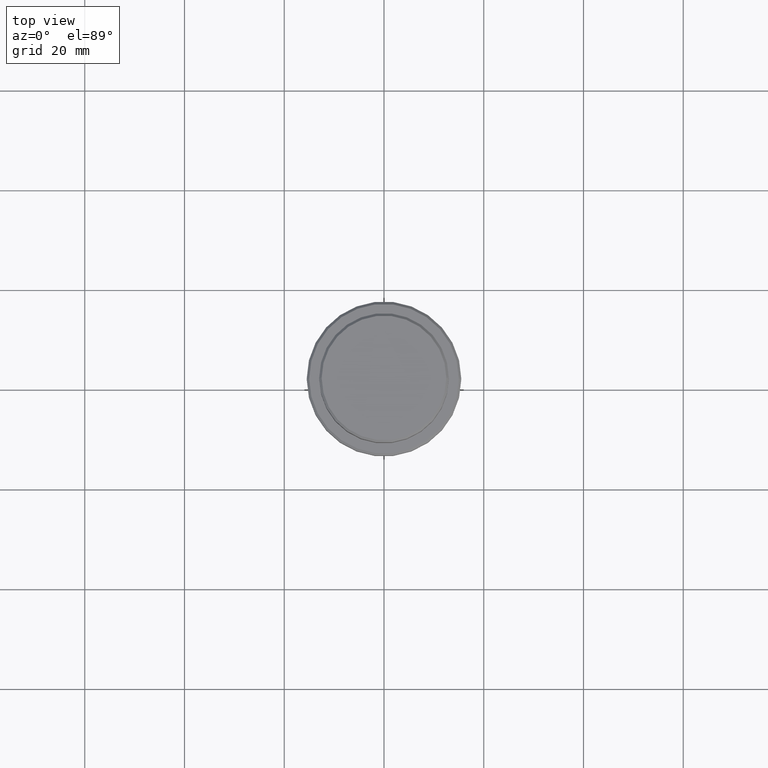
[diagram: clean part render]
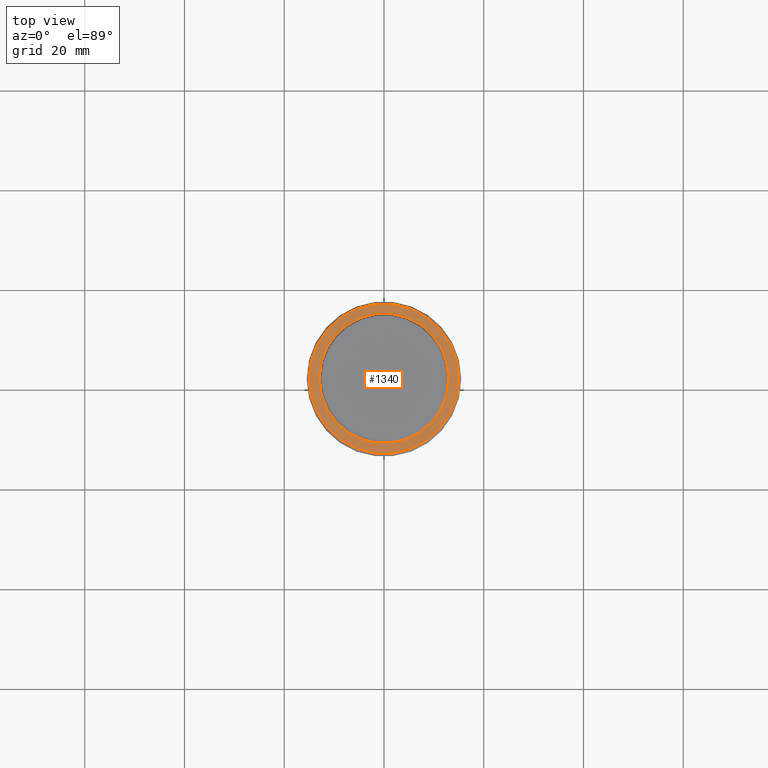
[diagram: same view with one face highlighted and labeled with its STEP entity id]
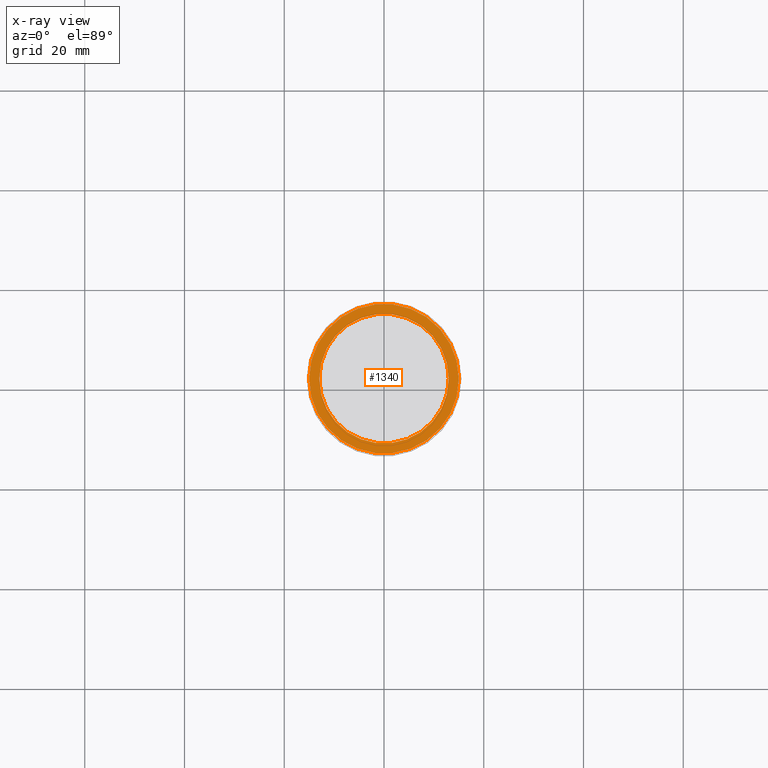
[diagram: x-ray of the same camera — body ghosted, the highlighted face saturated]
A machine part, top view. The second image highlights one B-rep face of the part: STEP entity #1340.
The next image is the same camera in x-ray: the body ghosted, the highlighted face saturated — about 0% of this face is hidden behind the body in this view.
In plain terms, the highlighted planar face has unit normal (0, -0, 1).
Its self-contained STEP definition (entity closure, byte-faithful):
#9 = CIRCLE ( 'NONE', #336, 12.99999999999999467 ) ;
#152 = CARTESIAN_POINT ( 'NONE',  ( 0.000000000000000000, 0.000000000000000000, -9.000000000000000000 ) ) ;
#168 = ORIENTED_EDGE ( 'NONE', *, *, #406, .T. ) ;
#186 = AXIS2_PLACEMENT_3D ( 'NONE', #799, #1401, #694 ) ;
#210 = EDGE_LOOP ( 'NONE', ( #168, #607 ) ) ;
#250 = CARTESIAN_POINT ( 'NONE',  ( 12.99999999999999467, 0.000000000000000000, -9.000000000000000000 ) ) ;
#293 = DIRECTION ( 'NONE',  ( 0.000000000000000000, 0.000000000000000000, -1.000000000000000000 ) ) ;
#312 = AXIS2_PLACEMENT_3D ( 'NONE', #1004, #338, #1417 ) ;
#334 = DIRECTION ( 'NONE',  ( 1.000000000000000000, 0.000000000000000000, 0.000000000000000000 ) ) ;
#336 = AXIS2_PLACEMENT_3D ( 'NONE', #1262, #1257, #492 ) ;
#338 = DIRECTION ( 'NONE',  ( 0.000000000000000000, -0.000000000000000000, 1.000000000000000000 ) ) ;
#405 = VERTEX_POINT ( 'NONE', #554 ) ;
#406 = EDGE_CURVE ( 'NONE', #519, #417, #704, .T. ) ;
#408 = ORIENTED_EDGE ( 'NONE', *, *, #937, .T. ) ;
#417 = VERTEX_POINT ( 'NONE', #435 ) ;
#435 = CARTESIAN_POINT ( 'NONE',  ( 15.00000000000002665, 1.867586368699715348E-15, -9.000000000000000000 ) ) ;
#492 = DIRECTION ( 'NONE',  ( 1.000000000000000000, 0.000000000000000000, 0.000000000000000000 ) ) ;
#494 = ORIENTED_EDGE ( 'NONE', *, *, #538, .T. ) ;
#519 = VERTEX_POINT ( 'NONE', #805 ) ;
#538 = EDGE_CURVE ( 'NONE', #1325, #405, #1287, .T. ) ;
#554 = CARTESIAN_POINT ( 'NONE',  ( -12.99999999999999467, 1.592040838891558504E-15, -9.000000000000000000 ) ) ;
#561 = PLANE ( 'NONE',  #312 ) ;
#575 = EDGE_LOOP ( 'NONE', ( #494, #408 ) ) ;
#607 = ORIENTED_EDGE ( 'NONE', *, *, #1404, .T. ) ;
#676 = AXIS2_PLACEMENT_3D ( 'NONE', #152, #293, #825 ) ;
#694 = DIRECTION ( 'NONE',  ( 1.000000000000000000, 0.000000000000000000, 0.000000000000000000 ) ) ;
#704 = CIRCLE ( 'NONE', #186, 15.00000000000002665 ) ;
#794 = FACE_OUTER_BOUND ( 'NONE', #210, .T. ) ;
#799 = CARTESIAN_POINT ( 'NONE',  ( 0.000000000000000000, 0.000000000000000000, -9.000000000000000000 ) ) ;
#805 = CARTESIAN_POINT ( 'NONE',  ( -15.00000000000002665, 0.000000000000000000, -9.000000000000000000 ) ) ;
#825 = DIRECTION ( 'NONE',  ( 1.000000000000000000, 0.000000000000000000, 0.000000000000000000 ) ) ;
#858 = CIRCLE ( 'NONE', #1250, 15.00000000000002665 ) ;
#937 = EDGE_CURVE ( 'NONE', #405, #1325, #9, .T. ) ;
#1004 = CARTESIAN_POINT ( 'NONE',  ( 0.000000000000000000, 12.49999999999999289, -9.000000000000000000 ) ) ;
#1114 = CARTESIAN_POINT ( 'NONE',  ( 0.000000000000000000, 0.000000000000000000, -9.000000000000000000 ) ) ;
#1203 = DIRECTION ( 'NONE',  ( -0.000000000000000000, -0.000000000000000000, 1.000000000000000000 ) ) ;
#1250 = AXIS2_PLACEMENT_3D ( 'NONE', #1114, #1203, #334 ) ;
#1257 = DIRECTION ( 'NONE',  ( 0.000000000000000000, 0.000000000000000000, -1.000000000000000000 ) ) ;
#1262 = CARTESIAN_POINT ( 'NONE',  ( 0.000000000000000000, 0.000000000000000000, -9.000000000000000000 ) ) ;
#1287 = CIRCLE ( 'NONE', #676, 12.99999999999999467 ) ;
#1324 = FACE_BOUND ( 'NONE', #575, .T. ) ;
#1325 = VERTEX_POINT ( 'NONE', #250 ) ;
#1340 = ADVANCED_FACE ( 'NONE', ( #794, #1324 ), #561, .T. ) ;
#1401 = DIRECTION ( 'NONE',  ( -0.000000000000000000, -0.000000000000000000, 1.000000000000000000 ) ) ;
#1404 = EDGE_CURVE ( 'NONE', #417, #519, #858, .T. ) ;
#1417 = DIRECTION ( 'NONE',  ( 1.000000000000000000, 0.000000000000000000, 0.000000000000000000 ) ) ;